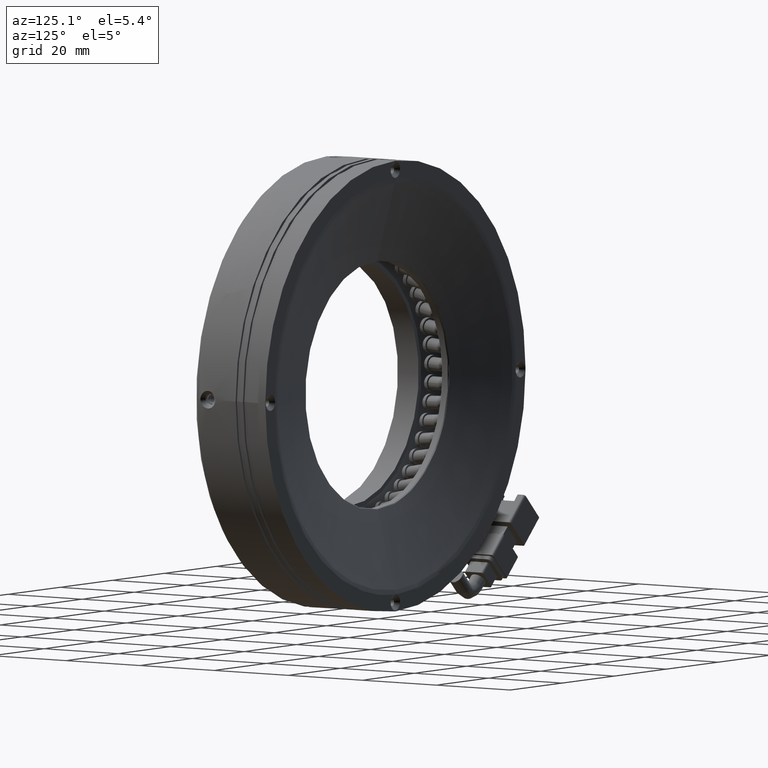
[diagram: clean part render]
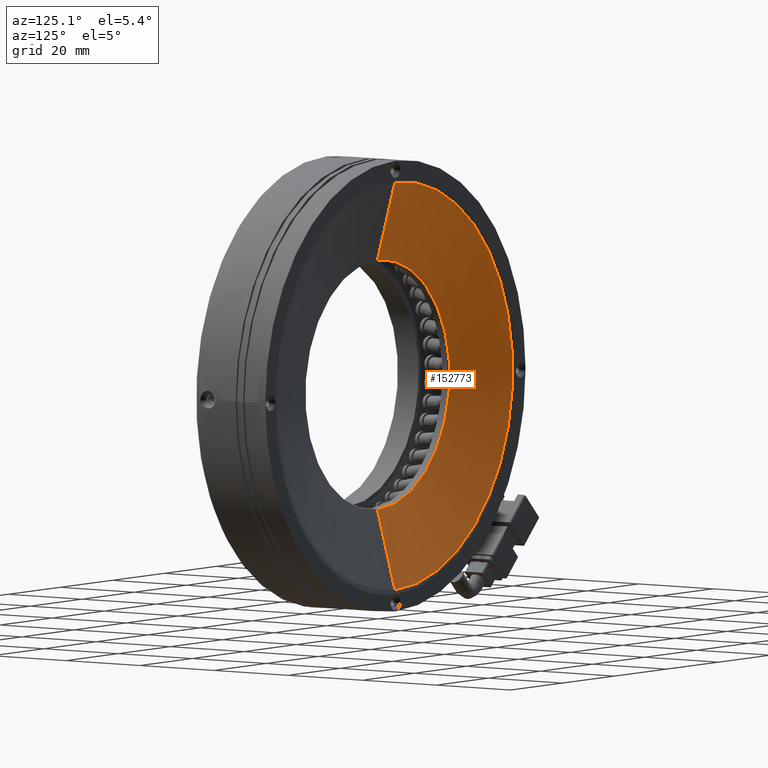
[diagram: same view with one face highlighted and labeled with its STEP entity id]
A machine part, auxiliary view. The second image highlights one B-rep face of the part: STEP entity #152773.
In plain terms, the highlighted conical surface has half-angle 75 deg.
Its self-contained STEP definition (entity closure, byte-faithful):
#3493 = DIRECTION ( 'NONE',  ( -0.0000000000000000000, 1.000000000000000000, 0.0000000000000000000 ) ) ;
#9754 = CIRCLE ( 'NONE', #169295, 45.22802881476470600 ) ;
#14557 = VERTEX_POINT ( 'NONE', #32570 ) ;
#17461 = CARTESIAN_POINT ( 'NONE',  ( 2.894644667477717100, 15.87898598221217800, -6.938893903907228400E-015 ) ) ;
#19476 = CARTESIAN_POINT ( 'NONE',  ( 2.894644667477721500, 15.87898598221217800, -27.72235428646925500 ) ) ;
#30977 = DIRECTION ( 'NONE',  ( 0.0000000000000000000, 0.0000000000000000000, 1.000000000000000000 ) ) ;
#32570 = CARTESIAN_POINT ( 'NONE',  ( 2.894644667477722900, 20.56961733503103000, -45.22802881476472700 ) ) ;
#36417 = CARTESIAN_POINT ( 'NONE',  ( 2.894644667477717100, 20.56961733503103000, -6.938893903907228400E-015 ) ) ;
#49173 = CARTESIAN_POINT ( 'NONE',  ( 2.894644667477717100, 15.87898598221217800, 27.72235428646924000 ) ) ;
#49929 = DIRECTION ( 'NONE',  ( 0.0000000000000000000, 0.0000000000000000000, 1.000000000000000000 ) ) ;
#53681 = EDGE_CURVE ( 'NONE', #131881, #14557, #56183, .T. ) ;
#56183 = LINE ( 'NONE', #171519, #87735 ) ;
#56432 = AXIS2_PLACEMENT_3D ( 'NONE', #136364, #3493, #151632 ) ;
#58957 = CIRCLE ( 'NONE', #99976, 27.72235428646924800 ) ;
#59588 = EDGE_CURVE ( 'NONE', #131881, #150496, #58957, .T. ) ;
#81006 = EDGE_CURVE ( 'NONE', #150496, #123663, #162207, .T. ) ;
#87735 = VECTOR ( 'NONE', #90894, 1000.000000000000000 ) ;
#89585 = FACE_OUTER_BOUND ( 'NONE', #94237, .T. ) ;
#90894 = DIRECTION ( 'NONE',  ( 1.182917971378669600E-016, 0.2588190451025209600, -0.9659258262890682000 ) ) ;
#94237 = EDGE_LOOP ( 'NONE', ( #118979, #125437, #129177, #112728 ) ) ;
#94253 = CARTESIAN_POINT ( 'NONE',  ( 2.894644667477717100, 20.56961733503103000, 45.22802881476471300 ) ) ;
#99976 = AXIS2_PLACEMENT_3D ( 'NONE', #17461, #111522, #30977 ) ;
#108436 = CONICAL_SURFACE ( 'NONE', #56432, 45.22802881476472000, 1.308996938995747000 ) ;
#111522 = DIRECTION ( 'NONE',  ( 0.0000000000000000000, 1.000000000000000000, 0.0000000000000000000 ) ) ;
#112728 = ORIENTED_EDGE ( 'NONE', *, *, #81006, .F. ) ;
#118979 = ORIENTED_EDGE ( 'NONE', *, *, #59588, .F. ) ;
#123663 = VERTEX_POINT ( 'NONE', #136399 ) ;
#125437 = ORIENTED_EDGE ( 'NONE', *, *, #53681, .T. ) ;
#126417 = VECTOR ( 'NONE', #161891, 1000.000000000000000 ) ;
#129177 = ORIENTED_EDGE ( 'NONE', *, *, #137387, .F. ) ;
#130504 = DIRECTION ( 'NONE',  ( -0.0000000000000000000, -1.000000000000000000, -0.0000000000000000000 ) ) ;
#131881 = VERTEX_POINT ( 'NONE', #19476 ) ;
#136364 = CARTESIAN_POINT ( 'NONE',  ( 2.894644667477717100, 20.56961733503103000, -6.938893903907228400E-015 ) ) ;
#136399 = CARTESIAN_POINT ( 'NONE',  ( 2.894644667477717100, 20.56961733503103000, 45.22802881476471300 ) ) ;
#137387 = EDGE_CURVE ( 'NONE', #123663, #14557, #9754, .T. ) ;
#150496 = VERTEX_POINT ( 'NONE', #49173 ) ;
#151632 = DIRECTION ( 'NONE',  ( 0.0000000000000000000, 0.0000000000000000000, 1.000000000000000000 ) ) ;
#152773 = ADVANCED_FACE ( 'NONE', ( #89585 ), #108436, .F. ) ;
#161891 = DIRECTION ( 'NONE',  ( 0.0000000000000000000, 0.2588190451025209600, 0.9659258262890682000 ) ) ;
#162207 = LINE ( 'NONE', #94253, #126417 ) ;
#169295 = AXIS2_PLACEMENT_3D ( 'NONE', #36417, #130504, #49929 ) ;
#171519 = CARTESIAN_POINT ( 'NONE',  ( 2.894644667477722900, 20.56961733503103000, -45.22802881476472700 ) ) ;